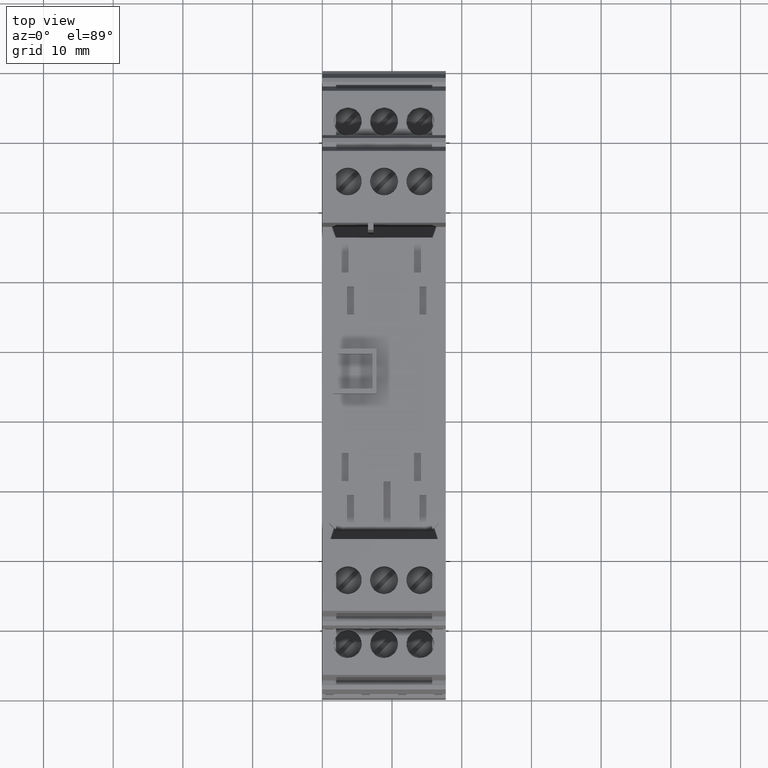
[diagram: clean part render]
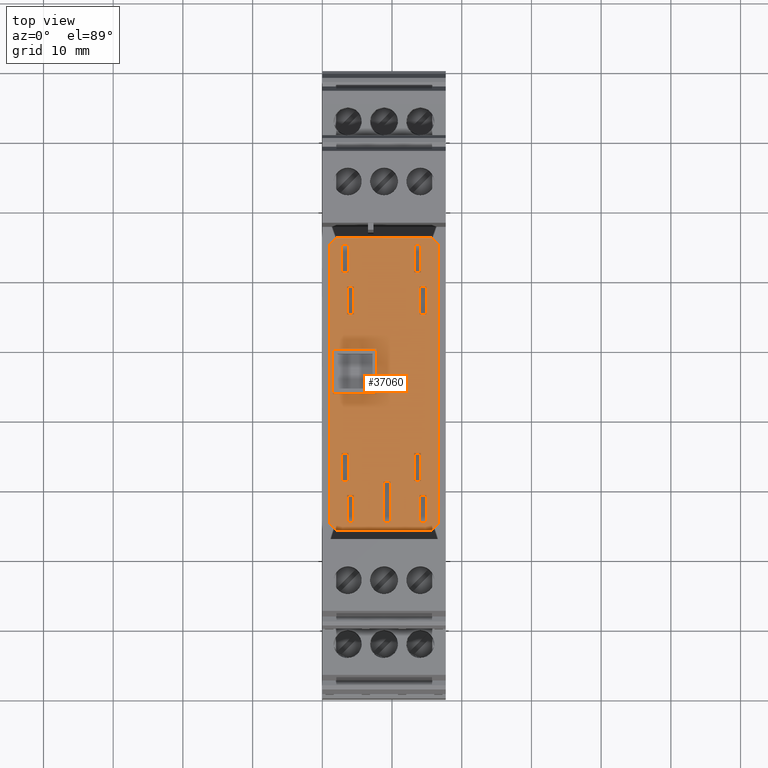
[diagram: same view with one face highlighted and labeled with its STEP entity id]
A machine part, top view. The second image highlights one B-rep face of the part: STEP entity #37060.
In plain terms, the highlighted planar face has unit normal (0, 0, 1).
Its self-contained STEP definition (entity closure, byte-faithful):
#31930=CARTESIAN_POINT('',(49.3413513671893,36.456274052444,-38.3));
#31940=VERTEX_POINT('',#31930);
#31970=CARTESIAN_POINT('',(8.90000005327397,36.456274052444,-38.3));
#31980=DIRECTION('',(-1.,0.,2.11259981369696E-23));
#31990=VECTOR('',#31980,1.);
#32000=LINE('',#31970,#31990);
#32010=CARTESIAN_POINT('',(89.3413513671894,36.456274052444,-38.3));
#32020=VERTEX_POINT('',#32010);
#32030=EDGE_CURVE('',#32020,#31940,#32000,.T.);
#32310=CARTESIAN_POINT('',(48.3413513671893,36.456274052444,-39.3));
#32320=VERTEX_POINT('',#32310);
#32350=CARTESIAN_POINT('',(83.8913513672815,36.456274052444,
-3.74999999990759));
#32360=DIRECTION('',(-0.707106781186545,0.,-0.70710678118655));
#32370=VECTOR('',#32360,1.);
#32380=LINE('',#32350,#32370);
#32390=EDGE_CURVE('',#31940,#32320,#32380,.T.);
#32620=CARTESIAN_POINT('',(49.3413513671894,36.456274052444,-54.));
#32630=VERTEX_POINT('',#32620);
#32660=CARTESIAN_POINT('',(-0.90864863290264,36.456274052444,
-3.74999999990759));
#32670=DIRECTION('',(0.707106781186545,0.,-0.70710678118655));
#32680=VECTOR('',#32670,1.);
#32690=LINE('',#32660,#32680);
#32700=CARTESIAN_POINT('',(48.3413513671893,36.456274052444,-53.));
#32710=VERTEX_POINT('',#32700);
#32720=EDGE_CURVE('',#32710,#32630,#32690,.T.);
#33000=CARTESIAN_POINT('',(90.3413513671893,36.456274052444,-53.));
#33010=VERTEX_POINT('',#33000);
#33040=CARTESIAN_POINT('',(139.591351367281,36.456274052444,
-3.74999999990759));
#33050=DIRECTION('',(0.707106781186545,0.,0.70710678118655));
#33060=VECTOR('',#33050,1.);
#33070=LINE('',#33040,#33060);
#33080=CARTESIAN_POINT('',(89.3413513671893,36.456274052444,-54.));
#33090=VERTEX_POINT('',#33080);
#33100=EDGE_CURVE('',#33090,#33010,#33070,.T.);
#33290=CARTESIAN_POINT('',(81.4789292064964,36.456274052444,
-46.1903015001682));
#33300=DIRECTION('',(0.,1.,-0.));
#33310=DIRECTION('',(-1.,0.,0.));
#33320=AXIS2_PLACEMENT_3D('',#33290,#33300,#33310);
#33330=PLANE('',#33320);
#33340=CARTESIAN_POINT('',(53.3913513671894,36.456274052444,
-3.74999999990759));
#33350=DIRECTION('',(1.22464679914735E-16,0.,1.));
#33360=VECTOR('',#33350,1.);
#33370=LINE('',#33340,#33360);
#33380=CARTESIAN_POINT('',(53.3913513671894,36.456274052444,-41.05));
#33390=VERTEX_POINT('',#33380);
#33400=CARTESIAN_POINT('',(53.3913513671894,36.456274052444,-40.05));
#33410=VERTEX_POINT('',#33400);
#33420=EDGE_CURVE('',#33390,#33410,#33370,.T.);
#33430=ORIENTED_EDGE('',*,*,#33420,.T.);
#33440=CARTESIAN_POINT('',(8.90000005327397,36.456274052444,-41.05));
#33450=DIRECTION('',(1.,0.,-1.22464679914735E-16));
#33460=VECTOR('',#33450,1.);
#33470=LINE('',#33440,#33460);
#33480=CARTESIAN_POINT('',(49.3913513671894,36.456274052444,-41.05));
#33490=VERTEX_POINT('',#33480);
#33500=EDGE_CURVE('',#33490,#33390,#33470,.T.);
#33510=ORIENTED_EDGE('',*,*,#33500,.T.);
#33520=CARTESIAN_POINT('',(49.3913513671894,36.456274052444,
-3.74999999990759));
#33530=DIRECTION('',(-1.22464679914735E-16,0.,-1.));
#33540=VECTOR('',#33530,1.);
#33550=LINE('',#33520,#33540);
#33560=CARTESIAN_POINT('',(49.3913513671894,36.456274052444,-40.05));
#33570=VERTEX_POINT('',#33560);
#33580=EDGE_CURVE('',#33570,#33490,#33550,.T.);
#33590=ORIENTED_EDGE('',*,*,#33580,.T.);
#33600=CARTESIAN_POINT('',(8.90000005327397,36.456274052444,-40.05));
#33610=DIRECTION('',(-1.,0.,1.22464679914735E-16));
#33620=VECTOR('',#33610,1.);
#33630=LINE('',#33600,#33620);
#33640=EDGE_CURVE('',#33410,#33570,#33630,.T.);
#33650=ORIENTED_EDGE('',*,*,#33640,.T.);
#33660=EDGE_LOOP('',(#33650,#33590,#33510,#33430));
#33670=FACE_BOUND('',#33660,.T.);
#33680=CARTESIAN_POINT('',(8.90000005327397,36.456274052444,-47.2));
#33690=DIRECTION('',(1.,0.,-1.22464679914735E-16));
#33700=VECTOR('',#33690,1.);
#33710=LINE('',#33680,#33700);
#33720=CARTESIAN_POINT('',(67.8913513671893,36.456274052444,-47.2));
#33730=VERTEX_POINT('',#33720);
#33740=CARTESIAN_POINT('',(74.2913513671893,36.456274052444,-47.2));
#33750=VERTEX_POINT('',#33740);
#33760=EDGE_CURVE('',#33730,#33750,#33710,.T.);
#33770=ORIENTED_EDGE('',*,*,#33760,.F.);
#33780=CARTESIAN_POINT('',(74.2913513671893,36.456274052444,
-3.74999999990759));
#33790=DIRECTION('',(-1.22464679914735E-16,0.,-1.));
#33800=VECTOR('',#33790,1.);
#33810=LINE('',#33780,#33800);
#33820=CARTESIAN_POINT('',(74.2913513671893,36.456274052444,-53.5));
#33830=VERTEX_POINT('',#33820);
#33840=EDGE_CURVE('',#33750,#33830,#33810,.T.);
#33850=ORIENTED_EDGE('',*,*,#33840,.F.);
#33860=CARTESIAN_POINT('',(8.90000005327397,36.456274052444,-53.5));
#33870=DIRECTION('',(-1.,0.,1.22464679914735E-16));
#33880=VECTOR('',#33870,1.);
#33890=LINE('',#33860,#33880);
#33900=CARTESIAN_POINT('',(67.8913513671893,36.456274052444,-53.5));
#33910=VERTEX_POINT('',#33900);
#33920=EDGE_CURVE('',#33830,#33910,#33890,.T.);
#33930=ORIENTED_EDGE('',*,*,#33920,.F.);
#33940=CARTESIAN_POINT('',(67.8913513671893,36.456274052444,
-3.7499999999076));
#33950=DIRECTION('',(1.22464679914735E-16,0.,1.));
#33960=VECTOR('',#33950,1.);
#33970=LINE('',#33940,#33960);
#33980=EDGE_CURVE('',#33910,#33730,#33970,.T.);
#33990=ORIENTED_EDGE('',*,*,#33980,.F.);
#34000=EDGE_LOOP('',(#33990,#33930,#33850,#33770));
#34010=FACE_BOUND('',#34000,.T.);
#34020=CARTESIAN_POINT('',(8.90000005327397,36.456274052444,-41.85));
#34030=DIRECTION('',(1.,0.,-8.99708997865547E-21));
#34040=VECTOR('',#34030,1.);
#34050=LINE('',#34020,#34040);
#34060=CARTESIAN_POINT('',(85.2913513671893,36.456274052444,-41.85));
#34070=VERTEX_POINT('',#34060);
#34080=CARTESIAN_POINT('',(89.2913513671893,36.456274052444,-41.85));
#34090=VERTEX_POINT('',#34080);
#34100=EDGE_CURVE('',#34070,#34090,#34050,.T.);
#34110=ORIENTED_EDGE('',*,*,#34100,.T.);
#34120=CARTESIAN_POINT('',(85.2913513671893,36.456274052444,
-3.74999999990759));
#34130=DIRECTION('',(-8.99708997865547E-21,0.,-1.));
#34140=VECTOR('',#34130,1.);
#34150=LINE('',#34120,#34140);
#34160=CARTESIAN_POINT('',(85.2913513671893,36.456274052444,-40.85));
#34170=VERTEX_POINT('',#34160);
#34180=EDGE_CURVE('',#34170,#34070,#34150,.T.);
#34190=ORIENTED_EDGE('',*,*,#34180,.T.);
#34200=CARTESIAN_POINT('',(8.90000005327397,36.456274052444,-40.85));
#34210=DIRECTION('',(-1.,0.,8.99708997865547E-21));
#34220=VECTOR('',#34210,1.);
#34230=LINE('',#34200,#34220);
#34240=CARTESIAN_POINT('',(89.2913513671893,36.456274052444,-40.85));
#34250=VERTEX_POINT('',#34240);
#34260=EDGE_CURVE('',#34250,#34170,#34230,.T.);
#34270=ORIENTED_EDGE('',*,*,#34260,.T.);
#34280=CARTESIAN_POINT('',(89.2913513671893,36.456274052444,
-3.74999999990759));
#34290=DIRECTION('',(8.99708997865547E-21,0.,1.));
#34300=VECTOR('',#34290,1.);
#34310=LINE('',#34280,#34300);
#34320=EDGE_CURVE('',#34090,#34250,#34310,.T.);
#34330=ORIENTED_EDGE('',*,*,#34320,.T.);
#34340=EDGE_LOOP('',(#34330,#34270,#34190,#34110));
#34350=FACE_BOUND('',#34340,.T.);
#34360=CARTESIAN_POINT('',(8.90000005327397,36.456274052444,-41.85));
#34370=DIRECTION('',(1.,0.,-8.99708997865547E-21));
#34380=VECTOR('',#34370,1.);
#34390=LINE('',#34360,#34380);
#34400=CARTESIAN_POINT('',(55.3913513671894,36.456274052444,-41.85));
#34410=VERTEX_POINT('',#34400);
#34420=CARTESIAN_POINT('',(59.3913513671894,36.456274052444,-41.85));
#34430=VERTEX_POINT('',#34420);
#34440=EDGE_CURVE('',#34410,#34430,#34390,.T.);
#34450=ORIENTED_EDGE('',*,*,#34440,.T.);
#34460=CARTESIAN_POINT('',(55.3913513671894,36.456274052444,
-3.74999999990759));
#34470=DIRECTION('',(-8.99708997865547E-21,0.,-1.));
#34480=VECTOR('',#34470,1.);
#34490=LINE('',#34460,#34480);
#34500=CARTESIAN_POINT('',(55.3913513671894,36.456274052444,-40.85));
#34510=VERTEX_POINT('',#34500);
#34520=EDGE_CURVE('',#34510,#34410,#34490,.T.);
#34530=ORIENTED_EDGE('',*,*,#34520,.T.);
#34540=CARTESIAN_POINT('',(8.90000005327397,36.456274052444,-40.85));
#34550=DIRECTION('',(-1.,0.,8.99708997865547E-21));
#34560=VECTOR('',#34550,1.);
#34570=LINE('',#34540,#34560);
#34580=CARTESIAN_POINT('',(59.3913513671894,36.456274052444,-40.85));
#34590=VERTEX_POINT('',#34580);
#34600=EDGE_CURVE('',#34590,#34510,#34570,.T.);
#34610=ORIENTED_EDGE('',*,*,#34600,.T.);
#34620=CARTESIAN_POINT('',(59.3913513671894,36.456274052444,
-3.74999999990759));
#34630=DIRECTION('',(8.99708997865547E-21,0.,1.));
#34640=VECTOR('',#34630,1.);
#34650=LINE('',#34620,#34640);
#34660=EDGE_CURVE('',#34430,#34590,#34650,.T.);
#34670=ORIENTED_EDGE('',*,*,#34660,.T.);
#34680=EDGE_LOOP('',(#34670,#34610,#34530,#34450));
#34690=FACE_BOUND('',#34680,.T.);
#34700=CARTESIAN_POINT('',(8.90000005327397,36.456274052444,-52.25));
#34710=DIRECTION('',(1.,0.,-8.99708997865547E-21));
#34720=VECTOR('',#34710,1.);
#34730=LINE('',#34700,#34720);
#34740=CARTESIAN_POINT('',(55.3913513671893,36.456274052444,-52.25));
#34750=VERTEX_POINT('',#34740);
#34760=CARTESIAN_POINT('',(59.3913513671894,36.456274052444,-52.25));
#34770=VERTEX_POINT('',#34760);
#34780=EDGE_CURVE('',#34750,#34770,#34730,.T.);
#34790=ORIENTED_EDGE('',*,*,#34780,.T.);
#34800=CARTESIAN_POINT('',(55.3913513671893,36.456274052444,
-3.74999999990759));
#34810=DIRECTION('',(-8.99708997865547E-21,0.,-1.));
#34820=VECTOR('',#34810,1.);
#34830=LINE('',#34800,#34820);
#34840=CARTESIAN_POINT('',(55.3913513671893,36.456274052444,-51.25));
#34850=VERTEX_POINT('',#34840);
#34860=EDGE_CURVE('',#34850,#34750,#34830,.T.);
#34870=ORIENTED_EDGE('',*,*,#34860,.T.);
#34880=CARTESIAN_POINT('',(8.90000005327397,36.456274052444,-51.25));
#34890=DIRECTION('',(-1.,0.,8.99708997865547E-21));
#34900=VECTOR('',#34890,1.);
#34910=LINE('',#34880,#34900);
#34920=CARTESIAN_POINT('',(59.3913513671894,36.456274052444,-51.25));
#34930=VERTEX_POINT('',#34920);
#34940=EDGE_CURVE('',#34930,#34850,#34910,.T.);
#34950=ORIENTED_EDGE('',*,*,#34940,.T.);
#34960=CARTESIAN_POINT('',(59.3913513671894,36.456274052444,
-3.74999999990759));
#34970=DIRECTION('',(8.99708997865547E-21,0.,1.));
#34980=VECTOR('',#34970,1.);
#34990=LINE('',#34960,#34980);
#35000=EDGE_CURVE('',#34770,#34930,#34990,.T.);
#35010=ORIENTED_EDGE('',*,*,#35000,.T.);
#35020=EDGE_LOOP('',(#35010,#34950,#34870,#34790));
#35030=FACE_BOUND('',#35020,.T.);
#35040=CARTESIAN_POINT('',(85.2913513671893,36.456274052444,
-3.74999999990759));
#35050=DIRECTION('',(-8.99708997865547E-21,0.,-1.));
#35060=VECTOR('',#35050,1.);
#35070=LINE('',#35040,#35060);
#35080=CARTESIAN_POINT('',(85.2913513671893,36.456274052444,-51.25));
#35090=VERTEX_POINT('',#35080);
#35100=CARTESIAN_POINT('',(85.2913513671893,36.456274052444,-52.25));
#35110=VERTEX_POINT('',#35100);
#35120=EDGE_CURVE('',#35090,#35110,#35070,.T.);
#35130=ORIENTED_EDGE('',*,*,#35120,.T.);
#35140=CARTESIAN_POINT('',(8.90000005327397,36.456274052444,-51.25));
#35150=DIRECTION('',(-1.,0.,8.99708997865547E-21));
#35160=VECTOR('',#35150,1.);
#35170=LINE('',#35140,#35160);
#35180=CARTESIAN_POINT('',(89.2913513671893,36.456274052444,-51.25));
#35190=VERTEX_POINT('',#35180);
#35200=EDGE_CURVE('',#35190,#35090,#35170,.T.);
#35210=ORIENTED_EDGE('',*,*,#35200,.T.);
#35220=CARTESIAN_POINT('',(89.2913513671893,36.456274052444,
-3.74999999990759));
#35230=DIRECTION('',(8.99708997865547E-21,0.,1.));
#35240=VECTOR('',#35230,1.);
#35250=LINE('',#35220,#35240);
#35260=CARTESIAN_POINT('',(89.2913513671893,36.456274052444,-52.25));
#35270=VERTEX_POINT('',#35260);
#35280=EDGE_CURVE('',#35270,#35190,#35250,.T.);
#35290=ORIENTED_EDGE('',*,*,#35280,.T.);
#35300=CARTESIAN_POINT('',(8.90000005327397,36.456274052444,-52.25));
#35310=DIRECTION('',(1.,0.,-8.99708997865547E-21));
#35320=VECTOR('',#35310,1.);
#35330=LINE('',#35300,#35320);
#35340=EDGE_CURVE('',#35110,#35270,#35330,.T.);
#35350=ORIENTED_EDGE('',*,*,#35340,.T.);
#35360=EDGE_LOOP('',(#35350,#35290,#35210,#35130));
#35370=FACE_BOUND('',#35360,.T.);
#35380=CARTESIAN_POINT('',(8.90000005327397,36.456274052444,-46.25));
#35390=DIRECTION('',(1.,0.,0.));
#35400=VECTOR('',#35390,1.);
#35410=LINE('',#35380,#35400);
#35420=CARTESIAN_POINT('',(49.3913513671893,36.456274052444,-46.25));
#35430=VERTEX_POINT('',#35420);
#35440=CARTESIAN_POINT('',(55.2913513671894,36.456274052444,-46.25));
#35450=VERTEX_POINT('',#35440);
#35460=EDGE_CURVE('',#35430,#35450,#35410,.T.);
#35470=ORIENTED_EDGE('',*,*,#35460,.T.);
#35480=CARTESIAN_POINT('',(49.3913513671893,36.456274052444,
-3.74999999990759));
#35490=DIRECTION('',(-1.22464679914735E-16,0.,-1.));
#35500=VECTOR('',#35490,1.);
#35510=LINE('',#35480,#35500);
#35520=CARTESIAN_POINT('',(49.3913513671893,36.456274052444,-45.25));
#35530=VERTEX_POINT('',#35520);
#35540=EDGE_CURVE('',#35530,#35430,#35510,.T.);
#35550=ORIENTED_EDGE('',*,*,#35540,.T.);
#35560=CARTESIAN_POINT('',(8.90000005327397,36.456274052444,-45.25));
#35570=DIRECTION('',(-1.,0.,0.));
#35580=VECTOR('',#35570,1.);
#35590=LINE('',#35560,#35580);
#35600=CARTESIAN_POINT('',(55.2913513671894,36.456274052444,-45.25));
#35610=VERTEX_POINT('',#35600);
#35620=EDGE_CURVE('',#35610,#35530,#35590,.T.);
#35630=ORIENTED_EDGE('',*,*,#35620,.T.);
#35640=CARTESIAN_POINT('',(55.2913513671894,36.456274052444,
-3.74999999990759));
#35650=DIRECTION('',(1.22464679914735E-16,0.,1.));
#35660=VECTOR('',#35650,1.);
#35670=LINE('',#35640,#35660);
#35680=EDGE_CURVE('',#35450,#35610,#35670,.T.);
#35690=ORIENTED_EDGE('',*,*,#35680,.T.);
#35700=EDGE_LOOP('',(#35690,#35630,#35550,#35470));
#35710=FACE_BOUND('',#35700,.T.);
#35720=CARTESIAN_POINT('',(8.90000005327397,36.456274052444,-40.05));
#35730=DIRECTION('',(-1.,0.,0.));
#35740=VECTOR('',#35730,1.);
#35750=LINE('',#35720,#35740);
#35760=CARTESIAN_POINT('',(83.2913513671894,36.456274052444,-40.05));
#35770=VERTEX_POINT('',#35760);
#35780=CARTESIAN_POINT('',(79.2913513671893,36.456274052444,-40.05));
#35790=VERTEX_POINT('',#35780);
#35800=EDGE_CURVE('',#35770,#35790,#35750,.T.);
#35810=ORIENTED_EDGE('',*,*,#35800,.T.);
#35820=CARTESIAN_POINT('',(83.2913513671894,36.456274052444,
-3.74999999990759));
#35830=DIRECTION('',(0.,0.,1.));
#35840=VECTOR('',#35830,1.);
#35850=LINE('',#35820,#35840);
#35860=CARTESIAN_POINT('',(83.2913513671894,36.456274052444,-41.05));
#35870=VERTEX_POINT('',#35860);
#35880=EDGE_CURVE('',#35870,#35770,#35850,.T.);
#35890=ORIENTED_EDGE('',*,*,#35880,.T.);
#35900=CARTESIAN_POINT('',(8.90000005327397,36.456274052444,-41.05));
#35910=DIRECTION('',(1.,0.,0.));
#35920=VECTOR('',#35910,1.);
#35930=LINE('',#35900,#35920);
#35940=CARTESIAN_POINT('',(79.2913513671893,36.456274052444,-41.05));
#35950=VERTEX_POINT('',#35940);
#35960=EDGE_CURVE('',#35950,#35870,#35930,.T.);
#35970=ORIENTED_EDGE('',*,*,#35960,.T.);
#35980=CARTESIAN_POINT('',(79.2913513671893,36.456274052444,
-3.74999999990759));
#35990=DIRECTION('',(0.,0.,-1.));
#36000=VECTOR('',#35990,1.);
#36010=LINE('',#35980,#36000);
#36020=EDGE_CURVE('',#35790,#35950,#36010,.T.);
#36030=ORIENTED_EDGE('',*,*,#36020,.T.);
#36040=EDGE_LOOP('',(#36030,#35970,#35890,#35810));
#36050=FACE_BOUND('',#36040,.T.);
#36060=CARTESIAN_POINT('',(83.2913513671893,36.456274052444,
-3.74999999990759));
#36070=DIRECTION('',(0.,0.,1.));
#36080=VECTOR('',#36070,1.);
#36090=LINE('',#36060,#36080);
#36100=CARTESIAN_POINT('',(83.2913513671893,36.456274052444,-51.45));
#36110=VERTEX_POINT('',#36100);
#36120=CARTESIAN_POINT('',(83.2913513671893,36.456274052444,-50.45));
#36130=VERTEX_POINT('',#36120);
#36140=EDGE_CURVE('',#36110,#36130,#36090,.T.);
#36150=ORIENTED_EDGE('',*,*,#36140,.T.);
#36160=CARTESIAN_POINT('',(8.90000005327397,36.456274052444,-51.45));
#36170=DIRECTION('',(1.,0.,0.));
#36180=VECTOR('',#36170,1.);
#36190=LINE('',#36160,#36180);
#36200=CARTESIAN_POINT('',(79.2913513671893,36.456274052444,-51.45));
#36210=VERTEX_POINT('',#36200);
#36220=EDGE_CURVE('',#36210,#36110,#36190,.T.);
#36230=ORIENTED_EDGE('',*,*,#36220,.T.);
#36240=CARTESIAN_POINT('',(79.2913513671893,36.456274052444,
-3.74999999990759));
#36250=DIRECTION('',(0.,0.,-1.));
#36260=VECTOR('',#36250,1.);
#36270=LINE('',#36240,#36260);
#36280=CARTESIAN_POINT('',(79.2913513671893,36.456274052444,-50.45));
#36290=VERTEX_POINT('',#36280);
#36300=EDGE_CURVE('',#36290,#36210,#36270,.T.);
#36310=ORIENTED_EDGE('',*,*,#36300,.T.);
#36320=CARTESIAN_POINT('',(8.90000005327397,36.456274052444,-50.45));
#36330=DIRECTION('',(-1.,0.,0.));
#36340=VECTOR('',#36330,1.);
#36350=LINE('',#36320,#36340);
#36360=EDGE_CURVE('',#36130,#36290,#36350,.T.);
#36370=ORIENTED_EDGE('',*,*,#36360,.T.);
#36380=EDGE_LOOP('',(#36370,#36310,#36230,#36150));
#36390=FACE_BOUND('',#36380,.T.);
#36400=CARTESIAN_POINT('',(8.90000005327397,36.456274052444,-51.45));
#36410=DIRECTION('',(1.,0.,-1.22464679914735E-16));
#36420=VECTOR('',#36410,1.);
#36430=LINE('',#36400,#36420);
#36440=CARTESIAN_POINT('',(49.3913513671894,36.456274052444,-51.45));
#36450=VERTEX_POINT('',#36440);
#36460=CARTESIAN_POINT('',(53.3913513671894,36.456274052444,-51.45));
#36470=VERTEX_POINT('',#36460);
#36480=EDGE_CURVE('',#36450,#36470,#36430,.T.);
#36490=ORIENTED_EDGE('',*,*,#36480,.T.);
#36500=CARTESIAN_POINT('',(49.3913513671894,36.456274052444,
-3.74999999990759));
#36510=DIRECTION('',(-1.22464679914735E-16,0.,-1.));
#36520=VECTOR('',#36510,1.);
#36530=LINE('',#36500,#36520);
#36540=CARTESIAN_POINT('',(49.3913513671894,36.456274052444,-50.45));
#36550=VERTEX_POINT('',#36540);
#36560=EDGE_CURVE('',#36550,#36450,#36530,.T.);
#36570=ORIENTED_EDGE('',*,*,#36560,.T.);
#36580=CARTESIAN_POINT('',(8.90000005327397,36.456274052444,-50.45));
#36590=DIRECTION('',(-1.,0.,1.22464679914735E-16));
#36600=VECTOR('',#36590,1.);
#36610=LINE('',#36580,#36600);
#36620=CARTESIAN_POINT('',(53.3913513671894,36.456274052444,-50.45));
#36630=VERTEX_POINT('',#36620);
#36640=EDGE_CURVE('',#36630,#36550,#36610,.T.);
#36650=ORIENTED_EDGE('',*,*,#36640,.T.);
#36660=CARTESIAN_POINT('',(53.3913513671894,36.456274052444,
-3.74999999990759));
#36670=DIRECTION('',(1.22464679914735E-16,0.,1.));
#36680=VECTOR('',#36670,1.);
#36690=LINE('',#36660,#36680);
#36700=EDGE_CURVE('',#36470,#36630,#36690,.T.);
#36710=ORIENTED_EDGE('',*,*,#36700,.T.);
#36720=EDGE_LOOP('',(#36710,#36650,#36570,#36490));
#36730=FACE_BOUND('',#36720,.T.);
#36740=ORIENTED_EDGE('',*,*,#32720,.F.);
#36750=CARTESIAN_POINT('',(8.90000005327397,36.456274052444,-54.));
#36760=DIRECTION('',(1.,0.,-1.22464679914735E-16));
#36770=VECTOR('',#36760,1.);
#36780=LINE('',#36750,#36770);
#36790=EDGE_CURVE('',#32630,#33090,#36780,.T.);
#36800=ORIENTED_EDGE('',*,*,#36790,.F.);
#36810=ORIENTED_EDGE('',*,*,#33100,.F.);
#36820=CARTESIAN_POINT('',(90.3413513671893,36.456274052444,
-3.74999999990759));
#36830=DIRECTION('',(0.,0.,1.));
#36840=VECTOR('',#36830,1.);
#36850=LINE('',#36820,#36840);
#36860=CARTESIAN_POINT('',(90.3413513671893,36.456274052444,-39.3));
#36870=VERTEX_POINT('',#36860);
#36880=EDGE_CURVE('',#33010,#36870,#36850,.T.);
#36890=ORIENTED_EDGE('',*,*,#36880,.F.);
#36900=CARTESIAN_POINT('',(54.7913513670972,36.456274052444,
-3.74999999990759));
#36910=DIRECTION('',(-0.707106781186545,0.,0.70710678118655));
#36920=VECTOR('',#36910,1.);
#36930=LINE('',#36900,#36920);
#36940=EDGE_CURVE('',#36870,#32020,#36930,.T.);
#36950=ORIENTED_EDGE('',*,*,#36940,.F.);
#36960=ORIENTED_EDGE('',*,*,#32030,.F.);
#36970=ORIENTED_EDGE('',*,*,#32390,.F.);
#36980=CARTESIAN_POINT('',(48.3413513671893,36.456274052444,
-3.74999999990759));
#36990=DIRECTION('',(-1.22464679914735E-16,0.,-1.));
#37000=VECTOR('',#36990,1.);
#37010=LINE('',#36980,#37000);
#37020=EDGE_CURVE('',#32320,#32710,#37010,.T.);
#37030=ORIENTED_EDGE('',*,*,#37020,.F.);
#37040=EDGE_LOOP('',(#37030,#36970,#36960,#36950,#36890,#36810,#36800,
#36740));
#37050=FACE_OUTER_BOUND('',#37040,.T.);
#37060=ADVANCED_FACE('',(#33670,#34010,#34350,#34690,#35030,#35370,
#35710,#36050,#36390,#36730,#37050),#33330,.T.);